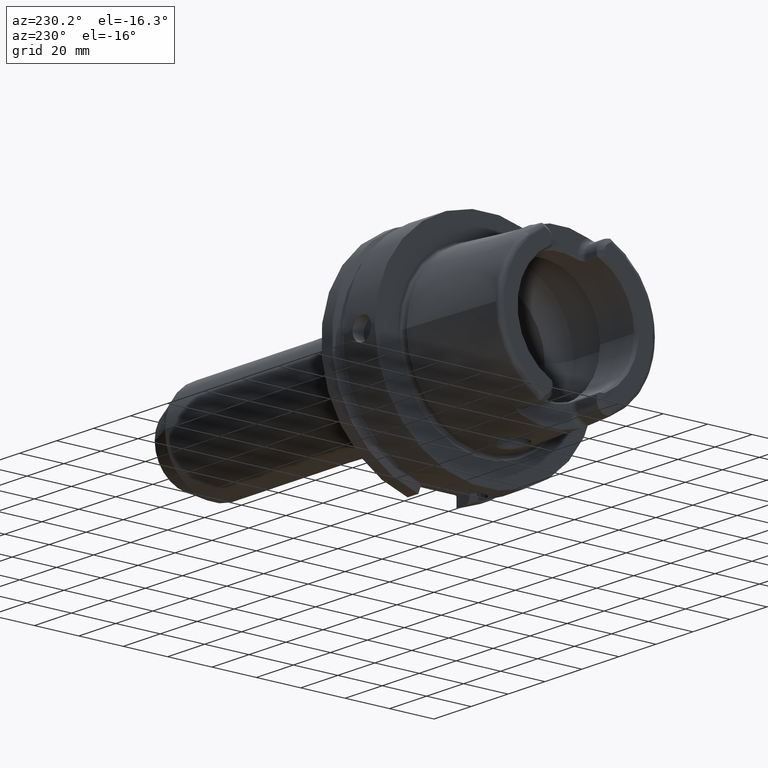
[diagram: clean part render]
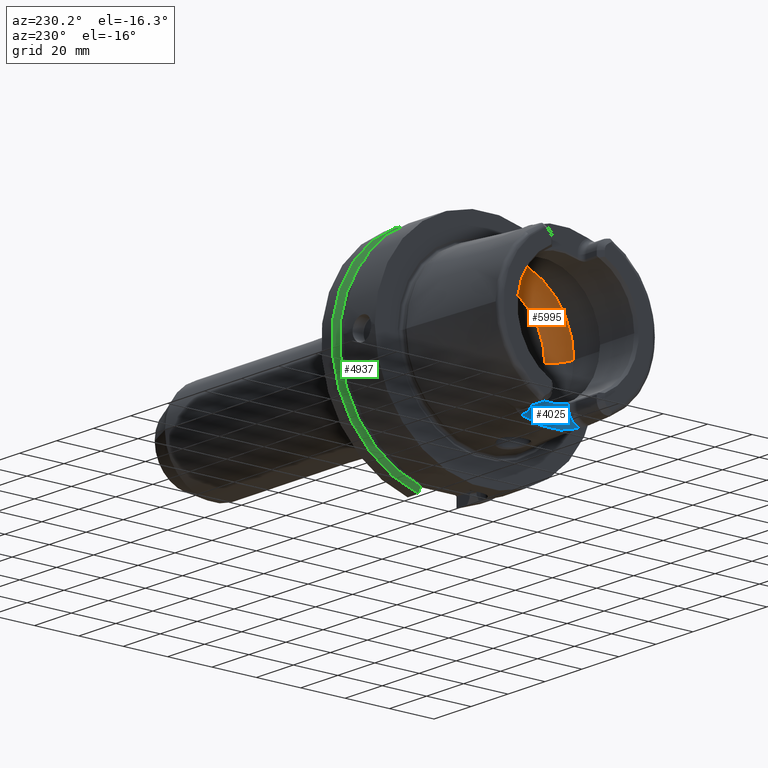
[diagram: same view with three faces highlighted in distinct colors, each labeled with its STEP entity id]
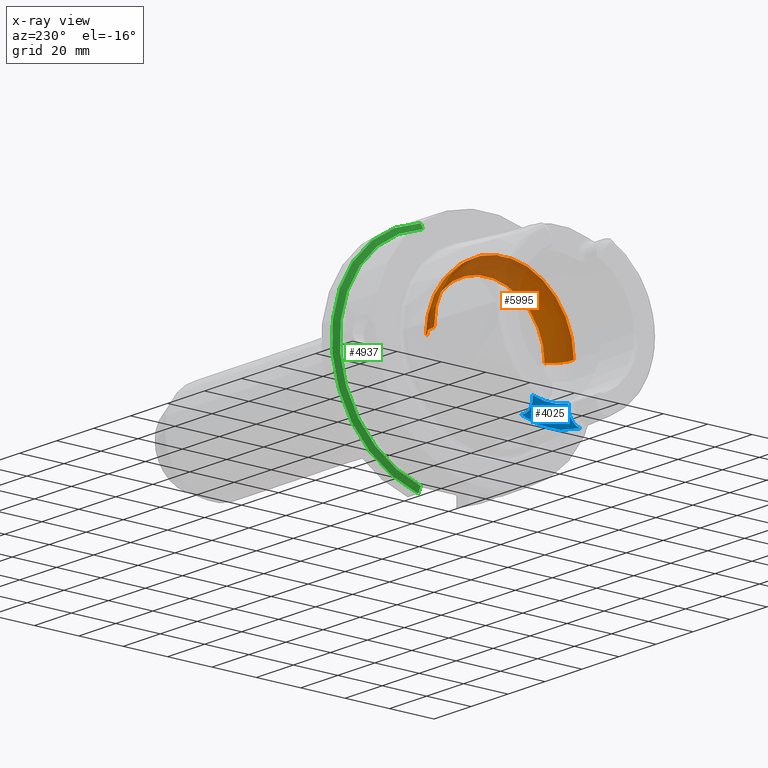
[diagram: x-ray of the same camera — body ghosted, the three highlighted faces saturated]
A machine part, auxiliary view with three faces highlighted in distinct colors.
The next image is the same camera in x-ray (body ghosted, the three faces saturated) — at least one of them is partly hidden behind the body in this view.
Their STEP definitions:

[orange] entity #5995 — the highlighted toroidal blend (fillet) surface has major radius 19.5 mm and minor (blend) radius 12 mm.
#2242=CARTESIAN_POINT('',(-9.E0,0.E0,3.147008518506E1));
#2243=CARTESIAN_POINT('',(-9.E0,2.141252053900E-1,3.147008518506E1));
#2244=CARTESIAN_POINT('',(-9.022897579641E0,6.436731047292E-1,
3.146736073712E1));
#2245=CARTESIAN_POINT('',(-9.127427069178E0,1.286248325661E0,3.145454181001E1));
#2246=CARTESIAN_POINT('',(-9.301031145484E0,1.913730198969E0,3.143197920586E1));
#2247=CARTESIAN_POINT('',(-9.539946842554E0,2.515068696018E0,3.139832080387E1));
#2248=CARTESIAN_POINT('',(-9.738529982809E0,2.891645116602E0,3.136752560017E1));
#2249=CARTESIAN_POINT('',(-9.846794344809E0,3.073185883624E0,3.134972932139E1));
#2251=CARTESIAN_POINT('',(-9.846794344809E0,-3.073185883624E0,
3.134972932139E1));
#2252=CARTESIAN_POINT('',(-9.738534471789E0,-2.891652643851E0,
3.136752486228E1));
#2253=CARTESIAN_POINT('',(-9.539946477828E0,-2.515078628379E0,
3.139832107651E1));
#2254=CARTESIAN_POINT('',(-9.300974895981E0,-1.913573808680E0,
3.143198691417E1));
#2255=CARTESIAN_POINT('',(-9.127396838585E0,-1.286102505522E0,
3.145454553504E1));
#2256=CARTESIAN_POINT('',(-9.022886850943E0,-6.435548392987E-1,
3.146736203025E1));
#2257=CARTESIAN_POINT('',(-9.E0,-2.140793620984E-1,3.147008518506E1));
#2258=CARTESIAN_POINT('',(-9.E0,0.E0,3.147008518506E1));
#2260=CARTESIAN_POINT('',(-1.E-1,0.E0,0.E0));
#2261=DIRECTION('',(1.E0,0.E0,0.E0));
#2262=DIRECTION('',(0.E0,1.E0,0.E0));
#2263=AXIS2_PLACEMENT_3D('',#2260,#2261,#2262);
#2289=CARTESIAN_POINT('',(-9.846794344809E0,0.E0,0.E0));
#2290=DIRECTION('',(1.E0,0.E0,0.E0));
#2291=DIRECTION('',(0.E0,1.E0,0.E0));
#2292=AXIS2_PLACEMENT_3D('',#2289,#2290,#2291);
#2294=CARTESIAN_POINT('',(-9.846794344809E0,0.E0,0.E0));
#2295=DIRECTION('',(1.E0,0.E0,0.E0));
#2296=DIRECTION('',(0.E0,-9.756145662299E-2,9.952295022665E-1));
#2297=AXIS2_PLACEMENT_3D('',#2294,#2295,#2296);
#2398=CARTESIAN_POINT('',(-9.846794344809E0,1.95E1,0.E0));
#2399=DIRECTION('',(0.E0,0.E0,1.E0));
#2400=DIRECTION('',(8.122328620674E-1,5.833333333333E-1,0.E0));
#2401=AXIS2_PLACEMENT_3D('',#2398,#2399,#2400);
#2408=CARTESIAN_POINT('',(-9.846794344809E0,-1.95E1,0.E0));
#2409=DIRECTION('',(0.E0,0.E0,-1.E0));
#2410=DIRECTION('',(8.122328620674E-1,-5.833333333333E-1,0.E0));
#2411=AXIS2_PLACEMENT_3D('',#2408,#2409,#2410);
#2913=CARTESIAN_POINT('',(-1.E-1,2.65E1,0.E0));
#2914=VERTEX_POINT('',#2913);
#2915=CARTESIAN_POINT('',(-9.846794344809E0,3.15E1,0.E0));
#2916=VERTEX_POINT('',#2915);
#2925=CARTESIAN_POINT('',(-1.E-1,-2.65E1,0.E0));
#2926=VERTEX_POINT('',#2925);
#2927=CARTESIAN_POINT('',(-9.846794344809E0,-3.15E1,0.E0));
#2928=VERTEX_POINT('',#2927);
#3094=VERTEX_POINT('',#2242);
#3095=VERTEX_POINT('',#2249);
#3096=VERTEX_POINT('',#2251);
#5976=CARTESIAN_POINT('',(-9.846794344809E0,0.E0,0.E0));
#5977=DIRECTION('',(1.E0,0.E0,0.E0));
#5978=DIRECTION('',(0.E0,-1.E0,0.E0));
#5979=AXIS2_PLACEMENT_3D('',#5976,#5977,#5978);
#5980=TOROIDAL_SURFACE('',#5979,1.95E1,1.2E1);
#5981=ORIENTED_EDGE('',*,*,#5953,.F.);
#5982=ORIENTED_EDGE('',*,*,#5679,.F.);
#5984=ORIENTED_EDGE('',*,*,#5983,.T.);
#5986=ORIENTED_EDGE('',*,*,#5985,.F.);
#5988=ORIENTED_EDGE('',*,*,#5987,.F.);
#5990=ORIENTED_EDGE('',*,*,#5989,.T.);
#5992=ORIENTED_EDGE('',*,*,#5991,.T.);
#5993=EDGE_LOOP('',(#5981,#5982,#5984,#5986,#5988,#5990,#5992));
#5994=FACE_OUTER_BOUND('',#5993,.F.);
#5995=ADVANCED_FACE('',(#5994),#5980,.F.);
#2250=B_SPLINE_CURVE_WITH_KNOTS('',3,(#2242,#2243,#2244,#2245,#2246,#2247,#2248,
#2249),.UNSPECIFIED.,.F.,.F.,(4,1,1,1,1,4),(0.E0,2.E-1,4.E-1,6.E-1,8.E-1,1.E0),
.UNSPECIFIED.);
#2259=B_SPLINE_CURVE_WITH_KNOTS('',3,(#2251,#2252,#2253,#2254,#2255,#2256,#2257,
#2258),.UNSPECIFIED.,.F.,.F.,(4,1,1,1,1,4),(0.E0,2.E-1,4.E-1,6.E-1,8.E-1,1.E0),
.UNSPECIFIED.);
#2264=CIRCLE('',#2263,2.65E1);
#2293=CIRCLE('',#2292,3.15E1);
#2298=CIRCLE('',#2297,3.15E1);
#2402=CIRCLE('',#2401,1.2E1);
#2412=CIRCLE('',#2411,1.2E1);
#5679=EDGE_CURVE('',#3096,#3094,#2259,.T.);
#5953=EDGE_CURVE('',#3094,#3095,#2250,.T.);
#5983=EDGE_CURVE('',#3096,#2928,#2298,.T.);
#5985=EDGE_CURVE('',#2926,#2928,#2412,.T.);
#5987=EDGE_CURVE('',#2914,#2926,#2264,.T.);
#5989=EDGE_CURVE('',#2914,#2916,#2402,.T.);
#5991=EDGE_CURVE('',#2916,#3095,#2293,.T.);

[blue] entity #4025 — the highlighted planar face has unit normal (-1, 0, 0).
#549=CARTESIAN_POINT('',(-3.5E1,0.E0,0.E0));
#550=DIRECTION('',(1.E0,0.E0,0.E0));
#551=DIRECTION('',(0.E0,-3.659355944317E-1,-9.306401779033E-1));
#552=AXIS2_PLACEMENT_3D('',#549,#550,#551);
#659=CARTESIAN_POINT('',(-3.5E1,1.326662904053E1,-3.373942900971E1));
#700=CARTESIAN_POINT('',(-3.5E1,-8.009999999994E0,-2.576044140549E1));
#701=CARTESIAN_POINT('',(-3.5E1,-7.269616392494E0,-2.599521452766E1));
#702=CARTESIAN_POINT('',(-3.5E1,-5.774680607735E0,-2.639793295020E1));
#703=CARTESIAN_POINT('',(-3.5E1,-3.481759859027E0,-2.680464578135E1));
#704=CARTESIAN_POINT('',(-3.5E1,-1.163574268408E0,-2.700848033442E1));
#705=CARTESIAN_POINT('',(-3.5E1,1.163574229636E0,-2.700848033529E1));
#706=CARTESIAN_POINT('',(-3.5E1,3.481759771636E0,-2.680464579107E1));
#707=CARTESIAN_POINT('',(-3.5E1,5.774680487919E0,-2.639793297771E1));
#708=CARTESIAN_POINT('',(-3.5E1,7.269616343063E0,-2.599521454333E1));
#709=CARTESIAN_POINT('',(-3.5E1,8.009999999993E0,-2.576044140549E1));
#711=DIRECTION('',(0.E0,-5.262912738182E-12,-1.E0));
#712=VECTOR('',#711,1.199558594507E0);
#713=CARTESIAN_POINT('',(-3.5E1,-8.009999999994E0,-2.576044140549E1));
#714=LINE('',#713,#712);
#715=CARTESIAN_POINT('',(-3.5E1,-1.501E1,-2.696E1));
#716=DIRECTION('',(-1.E0,0.E0,0.E0));
#717=DIRECTION('',(0.E0,1.E0,0.E0));
#718=AXIS2_PLACEMENT_3D('',#715,#716,#717);
#720=CARTESIAN_POINT('',(-3.5E1,1.501E1,-2.696E1));
#721=DIRECTION('',(-1.E0,0.E0,0.E0));
#722=DIRECTION('',(0.E0,-2.490529942106E-1,-9.684898585296E-1));
#723=AXIS2_PLACEMENT_3D('',#720,#721,#722);
#725=DIRECTION('',(0.E0,-6.865183864462E-12,1.E0));
#726=VECTOR('',#725,1.199558594503E0);
#727=CARTESIAN_POINT('',(-3.5E1,8.010000000001E0,-2.695999999999E1));
#728=LINE('',#727,#726);
#799=CARTESIAN_POINT('',(-3.5E1,-1.326662904053E1,-3.373942900971E1));
#3025=VERTEX_POINT('',#799);
#3026=VERTEX_POINT('',#659);
#3030=CARTESIAN_POINT('',(-3.5E1,-8.01E0,-2.696E1));
#3032=VERTEX_POINT('',#3030);
#3034=CARTESIAN_POINT('',(-3.5E1,8.01E0,-2.696E1));
#3036=VERTEX_POINT('',#3034);
#3042=VERTEX_POINT('',#700);
#3043=VERTEX_POINT('',#709);
#4010=CARTESIAN_POINT('',(-3.5E1,0.E0,0.E0));
#4011=DIRECTION('',(-1.E0,0.E0,0.E0));
#4012=DIRECTION('',(0.E0,0.E0,1.E0));
#4013=AXIS2_PLACEMENT_3D('',#4010,#4011,#4012);
#4014=PLANE('',#4013);
#4015=ORIENTED_EDGE('',*,*,#4001,.F.);
#4017=ORIENTED_EDGE('',*,*,#4016,.T.);
#4019=ORIENTED_EDGE('',*,*,#4018,.T.);
#4020=ORIENTED_EDGE('',*,*,#3849,.T.);
#4021=ORIENTED_EDGE('',*,*,#3907,.T.);
#4022=ORIENTED_EDGE('',*,*,#3919,.T.);
#4023=EDGE_LOOP('',(#4015,#4017,#4019,#4020,#4021,#4022));
#4024=FACE_OUTER_BOUND('',#4023,.F.);
#4025=ADVANCED_FACE('',(#4024),#4014,.T.);
#553=CIRCLE('',#552,3.6254E1);
#710=B_SPLINE_CURVE_WITH_KNOTS('',3,(#700,#701,#702,#703,#704,#705,#706,#707,
#708,#709),.UNSPECIFIED.,.F.,.F.,(4,1,1,1,1,1,1,4),(0.E0,1.428571428571E-1,
2.857142857143E-1,4.285714285714E-1,5.714285714286E-1,7.142857142857E-1,
8.571428571429E-1,1.E0),.UNSPECIFIED.);
#719=CIRCLE('',#718,7.E0);
#724=CIRCLE('',#723,7.E0);
#3849=EDGE_CURVE('',#3025,#3026,#553,.T.);
#3907=EDGE_CURVE('',#3026,#3036,#724,.T.);
#3919=EDGE_CURVE('',#3036,#3043,#728,.T.);
#4001=EDGE_CURVE('',#3042,#3043,#710,.T.);
#4016=EDGE_CURVE('',#3042,#3032,#714,.T.);
#4018=EDGE_CURVE('',#3032,#3025,#719,.T.);

[green] entity #4937 — the highlighted conical surface has half-angle 60 deg.
#1646=CARTESIAN_POINT('',(2.324759526419E1,1.1E1,-4.877499359303E1));
#1647=CARTESIAN_POINT('',(2.309075618244E1,1.1E1,-4.849651763825E1));
#1648=CARTESIAN_POINT('',(2.277996511889E1,1.1E1,-4.794446101512E1));
#1649=CARTESIAN_POINT('',(2.232251548208E1,1.1E1,-4.713119970766E1));
#1650=CARTESIAN_POINT('',(2.202321854676E1,1.1E1,-4.659863454325E1));
#1651=CARTESIAN_POINT('',(2.1875E1,1.1E1,-4.633477721644E1));
#1653=CARTESIAN_POINT('',(2.324759526419E1,0.E0,0.E0));
#1654=DIRECTION('',(1.E0,0.E0,0.E0));
#1655=DIRECTION('',(0.E0,2.2E-1,-9.754998718606E-1));
#1656=AXIS2_PLACEMENT_3D('',#1653,#1654,#1655);
#1658=CARTESIAN_POINT('',(2.1875E1,1.E1,4.656083740331E1));
#1659=CARTESIAN_POINT('',(2.202341485415E1,1.E1,4.682376142925E1));
#1660=CARTESIAN_POINT('',(2.232297392293E1,1.E1,4.735424823675E1));
#1661=CARTESIAN_POINT('',(2.278043311037E1,1.E1,4.816377318979E1));
#1662=CARTESIAN_POINT('',(2.309095690730E1,1.E1,4.871289474479E1));
#1663=CARTESIAN_POINT('',(2.324759526419E1,1.E1,4.898979485566E1));
#1665=CARTESIAN_POINT('',(2.1875E1,0.E0,0.E0));
#1666=DIRECTION('',(-1.E0,0.E0,0.E0));
#1667=DIRECTION('',(0.E0,2.099843560504E-1,9.777047459300E-1));
#1668=AXIS2_PLACEMENT_3D('',#1665,#1666,#1667);
#3166=CARTESIAN_POINT('',(2.1875E1,1.E1,4.656083740331E1));
#3167=VERTEX_POINT('',#3166);
#3169=VERTEX_POINT('',#1663);
#3178=CARTESIAN_POINT('',(2.324759526419E1,1.1E1,-4.877499359303E1));
#3180=VERTEX_POINT('',#3178);
#3206=CARTESIAN_POINT('',(2.1875E1,1.1E1,-4.633477721644E1));
#3207=VERTEX_POINT('',#3206);
#4925=CARTESIAN_POINT('',(2.256129763210E1,0.E0,0.E0));
#4926=DIRECTION('',(1.E0,0.E0,0.E0));
#4927=DIRECTION('',(0.E0,-1.E0,0.E0));
#4928=AXIS2_PLACEMENT_3D('',#4925,#4926,#4927);
#4929=CONICAL_SURFACE('',#4928,4.881129763210E1,6.E1);
#4930=ORIENTED_EDGE('',*,*,#4556,.F.);
#4931=ORIENTED_EDGE('',*,*,#4487,.T.);
#4933=ORIENTED_EDGE('',*,*,#4932,.F.);
#4934=ORIENTED_EDGE('',*,*,#4889,.T.);
#4935=EDGE_LOOP('',(#4930,#4931,#4933,#4934));
#4936=FACE_OUTER_BOUND('',#4935,.F.);
#4937=ADVANCED_FACE('',(#4936),#4929,.T.);
#1652=B_SPLINE_CURVE_WITH_KNOTS('',3,(#1646,#1647,#1648,#1649,#1650,#1651),
.UNSPECIFIED.,.F.,.F.,(4,1,1,4),(0.E0,3.333333333333E-1,6.666666666667E-1,1.E0),
.UNSPECIFIED.);
#1657=CIRCLE('',#1656,5.E1);
#1664=B_SPLINE_CURVE_WITH_KNOTS('',3,(#1658,#1659,#1660,#1661,#1662,#1663),
.UNSPECIFIED.,.F.,.F.,(4,1,1,4),(0.E0,3.333333333333E-1,6.666666666667E-1,1.E0),
.UNSPECIFIED.);
#1669=CIRCLE('',#1668,4.762259526419E1);
#4487=EDGE_CURVE('',#3180,#3169,#1657,.T.);
#4556=EDGE_CURVE('',#3180,#3207,#1652,.T.);
#4889=EDGE_CURVE('',#3167,#3207,#1669,.T.);
#4932=EDGE_CURVE('',#3167,#3169,#1664,.T.);